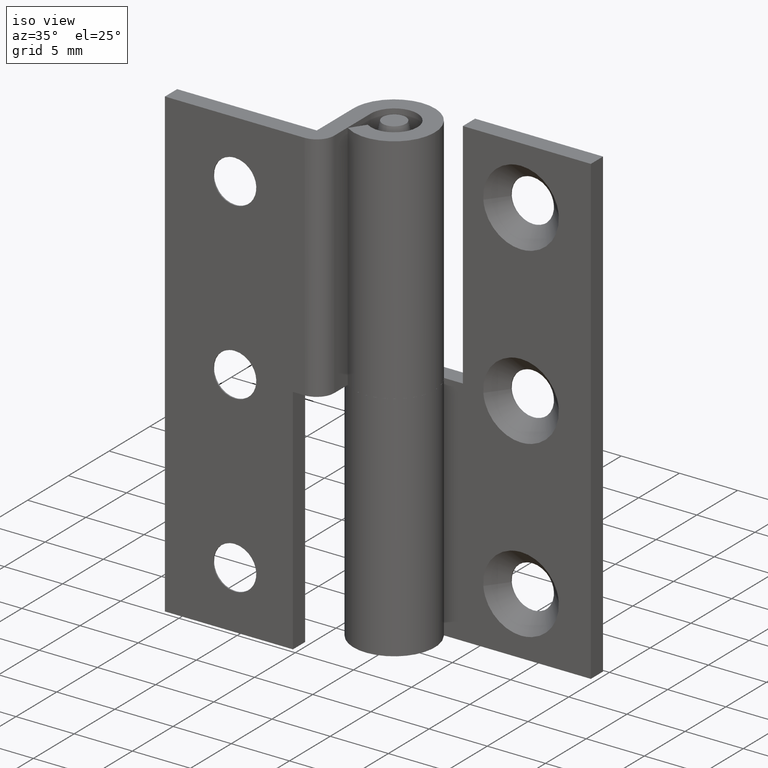
[diagram: clean part render]
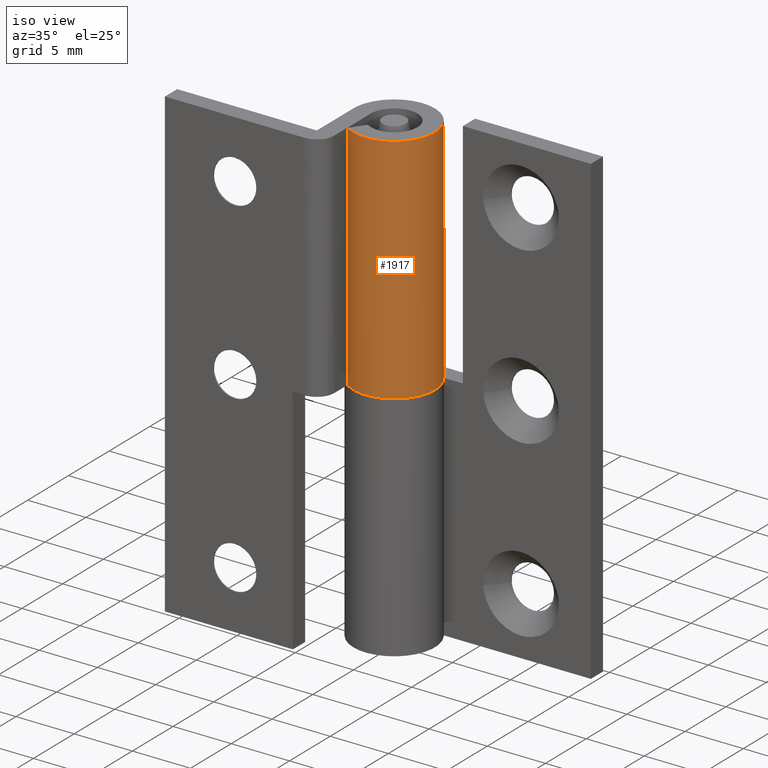
[diagram: same view with one face highlighted and labeled with its STEP entity id]
A machine part, iso view. The second image highlights one B-rep face of the part: STEP entity #1917.
In plain terms, the highlighted face is a freeform B-spline surface patch.
Its self-contained STEP definition (entity closure, byte-faithful):
#1516=CARTESIAN_POINT('',(-3.500000000000000,0.0,20.0));
#1517=VERTEX_POINT('',#1516);
#1523=CARTESIAN_POINT('',(-1.950000000000000,-2.906458325866725,20.0));
#1524=VERTEX_POINT('',#1523);
#1525=CARTESIAN_POINT('',(-3.500000000000000,0.0,20.0));
#1526=CARTESIAN_POINT('',(-3.500000000000000,2.732759340469792,20.0));
#1527=CARTESIAN_POINT('',(-0.848824158269080,3.395511382448716,20.0));
#1528=CARTESIAN_POINT('',(1.802351683461841,4.058263424427640,20.0));
#1529=CARTESIAN_POINT('',(3.088284313336451,1.646966909200063,20.0));
#1530=CARTESIAN_POINT('',(4.374216943211061,-0.764329606027515,20.0));
#1531=CARTESIAN_POINT('',(2.346772919848174,-2.596662639363705,20.0));
#1532=CARTESIAN_POINT('',(0.319328896485287,-4.428995672699895,20.0));
#1533=CARTESIAN_POINT('',(-1.949999999999996,-2.906458325866727,20.0));
#1541=(BOUNDED_CURVE()B_SPLINE_CURVE(2,(#1525,#1526,#1527,#1528,#1529,#1530,#1531,#1532,#1533),.UNSPECIFIED.,.F.,.U.)B_SPLINE_CURVE_WITH_KNOTS((3,2,2,2,3),(0.0,0.250000000000000,0.500000000000000,0.750000000000000,1.0),.UNSPECIFIED.)CURVE()GEOMETRIC_REPRESENTATION_ITEM()RATIONAL_B_SPLINE_CURVE((1.0,0.788200858942973,1.0,0.788200858942973,1.0,0.788200858942973,1.0,0.788200858942973,1.0))REPRESENTATION_ITEM(''));
#1542=EDGE_CURVE('',#1517,#1524,#1541,.T.);
#1642=CARTESIAN_POINT('',(-1.950000000000000,-2.906458325866725,40.0));
#1643=VERTEX_POINT('',#1642);
#1649=CARTESIAN_POINT('',(-3.500000000000000,0.0,40.0));
#1650=VERTEX_POINT('',#1649);
#1651=CARTESIAN_POINT('',(-1.950000000000000,-2.906458325866725,40.0));
#1652=CARTESIAN_POINT('',(0.319328896485281,-4.428995672699894,40.0));
#1653=CARTESIAN_POINT('',(2.346772919848170,-2.596662639363707,40.0));
#1654=CARTESIAN_POINT('',(4.374216943211060,-0.764329606027519,40.0));
#1655=CARTESIAN_POINT('',(3.088284313336452,1.646966909200060,40.0));
#1656=CARTESIAN_POINT('',(1.802351683461844,4.058263424427640,40.0));
#1657=CARTESIAN_POINT('',(-0.848824158269079,3.395511382448716,40.0));
#1658=CARTESIAN_POINT('',(-3.500000000000000,2.732759340469792,40.0));
#1659=CARTESIAN_POINT('',(-3.500000000000000,0.0,40.0));
#1667=(BOUNDED_CURVE()B_SPLINE_CURVE(2,(#1651,#1652,#1653,#1654,#1655,#1656,#1657,#1658,#1659),.UNSPECIFIED.,.F.,.U.)B_SPLINE_CURVE_WITH_KNOTS((3,2,2,2,3),(0.0,0.250000000000000,0.500000000000000,0.750000000000000,1.0),.UNSPECIFIED.)CURVE()GEOMETRIC_REPRESENTATION_ITEM()RATIONAL_B_SPLINE_CURVE((1.0,0.788200858942973,1.0,0.788200858942973,1.0,0.788200858942973,1.0,0.788200858942973,1.0))REPRESENTATION_ITEM(''));
#1668=EDGE_CURVE('',#1643,#1650,#1667,.T.);
#1726=CARTESIAN_POINT('',(-1.950000000000000,-2.906458325866725,20.0));
#1727=CARTESIAN_POINT('',(-1.950000000000000,-2.906458325866725,40.0));
#1728=QUASI_UNIFORM_CURVE('',1,(#1726,#1727),.UNSPECIFIED.,.F.,.U.);
#1729=EDGE_CURVE('',#1524,#1643,#1728,.T.);
#1881=CARTESIAN_POINT('',(-3.500000000000000,0.0,20.0));
#1882=CARTESIAN_POINT('',(-3.500000000000000,0.0,40.0));
#1883=QUASI_UNIFORM_CURVE('',1,(#1881,#1882),.UNSPECIFIED.,.F.,.U.);
#1884=EDGE_CURVE('',#1517,#1650,#1883,.T.);
#1889=CARTESIAN_POINT('',(-3.498563590180359,-0.100263679686654,19.500000000000000));
#1890=CARTESIAN_POINT('',(-3.498563590180359,-0.100263679686654,40.512500000000003));
#1891=CARTESIAN_POINT('',(-3.625367686488793,4.324391348104696,19.500000000000000));
#1892=CARTESIAN_POINT('',(-3.625367686488793,4.324391348104696,40.512500000000010));
#1893=CARTESIAN_POINT('',(0.709263229472684,3.427381751617110,19.500000000000000));
#1894=CARTESIAN_POINT('',(0.709263229472684,3.427381751617110,40.512500000000003));
#1895=CARTESIAN_POINT('',(5.043894145434162,2.530372155129526,19.500000000000000));
#1896=CARTESIAN_POINT('',(5.043894145434162,2.530372155129526,40.512500000000010));
#1897=CARTESIAN_POINT('',(3.171428875679482,-1.480553574345205,19.500000000000000));
#1898=CARTESIAN_POINT('',(3.171428875679482,-1.480553574345205,40.512500000000003));
#1899=CARTESIAN_POINT('',(1.298963605924803,-5.491479303819935,19.500000000000000));
#1900=CARTESIAN_POINT('',(1.298963605924803,-5.491479303819935,40.512500000000010));
#1901=CARTESIAN_POINT('',(-2.172026892797768,-2.744503448160206,19.500000000000000));
#1902=CARTESIAN_POINT('',(-2.172026892797768,-2.744503448160206,40.512500000000003));
#1910=(BOUNDED_SURFACE()B_SPLINE_SURFACE(1,2,((#1889,#1891,#1893,#1895,#1897,#1899,#1901),(#1890,#1892,#1894,#1896,#1898,#1900,#1902)),.UNSPECIFIED.,.F.,.F.,.U.)B_SPLINE_SURFACE_WITH_KNOTS((2,2),(3,2,2,3),(0.0,21.012500000000010),(0.0,6.777915536387798,13.555831072775600,20.333746609163398),.UNSPECIFIED.)GEOMETRIC_REPRESENTATION_ITEM()RATIONAL_B_SPLINE_SURFACE(((1.0,0.620235491268260,1.0,0.620235491268260,1.0,0.620235491268260,1.0),(1.0,0.620235491268260,1.0,0.620235491268260,1.0,0.620235491268260,1.0)))REPRESENTATION_ITEM('')SURFACE());
#1911=ORIENTED_EDGE('',*,*,#1729,.F.);
#1912=ORIENTED_EDGE('',*,*,#1542,.F.);
#1913=ORIENTED_EDGE('',*,*,#1884,.T.);
#1914=ORIENTED_EDGE('',*,*,#1668,.F.);
#1915=EDGE_LOOP('',(#1911,#1912,#1913,#1914));
#1916=FACE_OUTER_BOUND('',#1915,.T.);
#1917=ADVANCED_FACE('',(#1916),#1910,.T.);